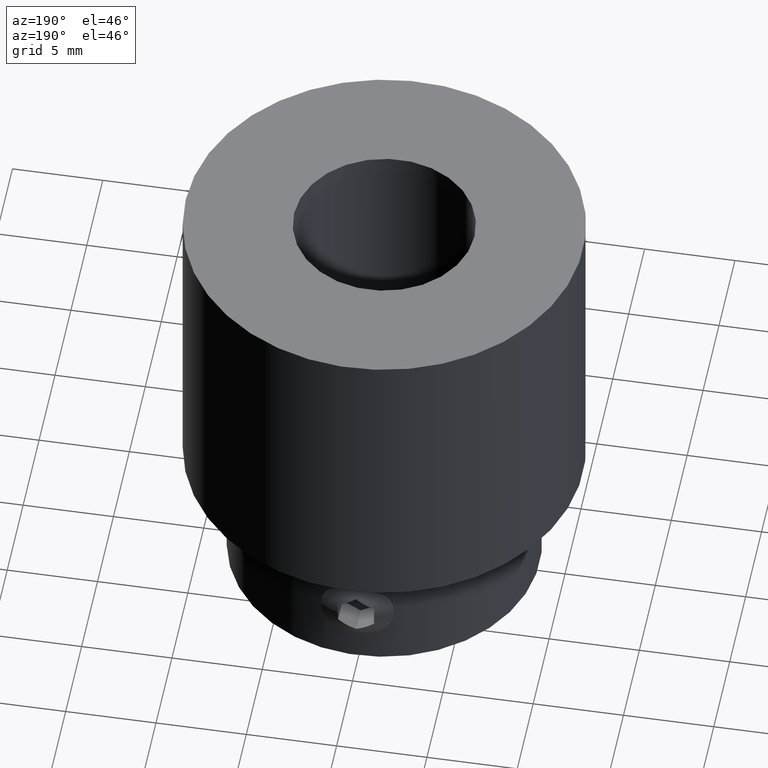
[diagram: clean part render]
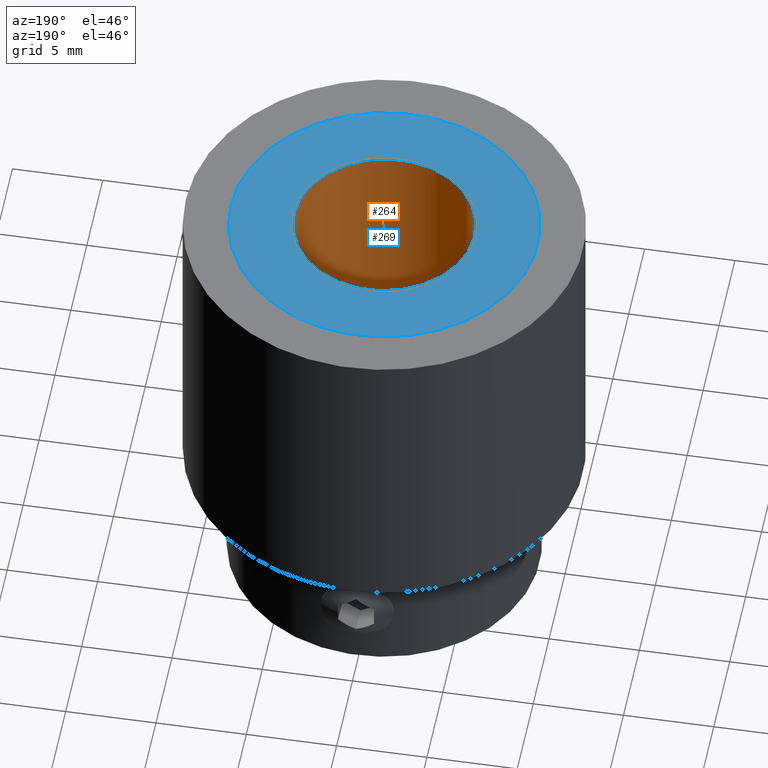
[diagram: same view with the hole feature highlighted: cylindrical wall and planar end face, labeled with their STEP entity ids]
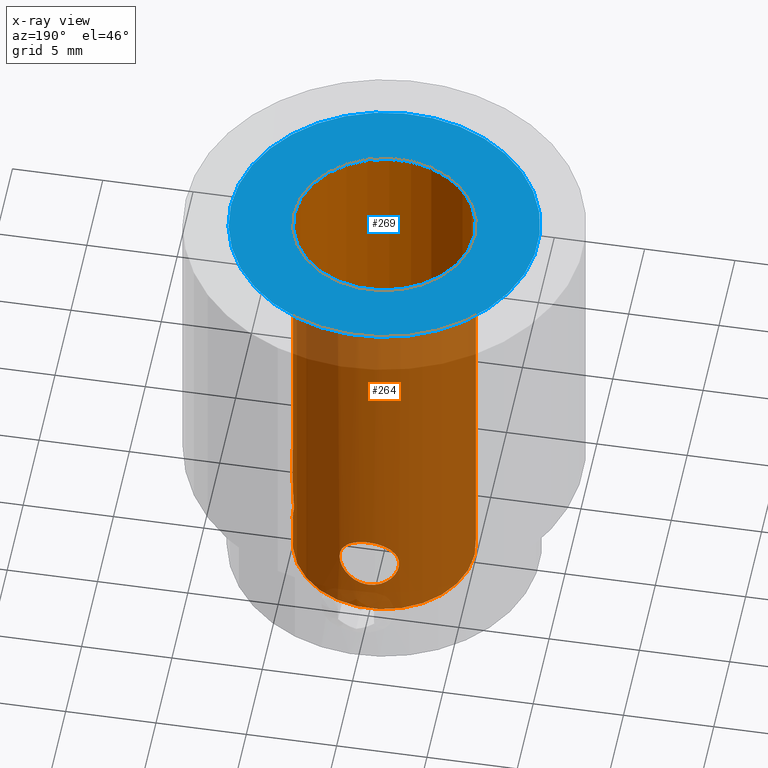
[diagram: x-ray of the same camera — body ghosted, the hole faces saturated]
A machine part, auxiliary view. The highlighted faces form one hole feature of diameter 10 mm: the cylindrical wall (entity #264, orange) and its adjacent planar end face (entity #269, blue) — they share a circular edge in the B-rep.
The next image is the same camera in x-ray (body ghosted, the hole faces saturated) — the bore reads through the body.
Wall:
#264 = ADVANCED_FACE( '', ( #309, #310, #311, #312 ), #313, .F. );
#309 = FACE_BOUND( '', #401, .T. );
#310 = FACE_OUTER_BOUND( '', #402, .T. );
#311 = FACE_OUTER_BOUND( '', #403, .T. );
#312 = FACE_BOUND( '', #404, .T. );
#313 = CYLINDRICAL_SURFACE( '', #405, 5.00000000000000 );
#401 = EDGE_LOOP( '', ( #495 ) );
#402 = EDGE_LOOP( '', ( #496 ) );
#403 = EDGE_LOOP( '', ( #497 ) );
#404 = EDGE_LOOP( '', ( #498 ) );
#405 = AXIS2_PLACEMENT_3D( '', #499, #500, #501 );
#495 = ORIENTED_EDGE( '', *, *, #708, .T. );
#496 = ORIENTED_EDGE( '', *, *, #709, .F. );
#497 = ORIENTED_EDGE( '', *, *, #710, .T. );
#498 = ORIENTED_EDGE( '', *, *, #711, .T. );
#499 = CARTESIAN_POINT( '', ( 0.000000000000000, 0.000000000000000, -25.0000000000000 ) );
#500 = DIRECTION( '', ( -0.000000000000000, 0.000000000000000, -1.00000000000000 ) );
#501 = DIRECTION( '', ( 1.00000000000000, 0.000000000000000, 0.000000000000000 ) );
#708 = EDGE_CURVE( '', #770, #770, #771, .T. );
#709 = EDGE_CURVE( '', #772, #772, #773, .T. );
#710 = EDGE_CURVE( '', #774, #774, #775, .T. );
#711 = EDGE_CURVE( '', #776, #776, #777, .T. );
#770 = VERTEX_POINT( '', #972 );
#771 = B_SPLINE_CURVE_WITH_KNOTS( '', 3, ( #973, #974, #975, #976, #977, #978, #979, #980, #981, #982, #983, #984, #985, #986, #987, #988, #989, #990, #991, #992, #993, #994, #995, #996, #997, #998, #999, #1000, #1001, #1002, #1003, #1004, #1005, #1006, #1007, #1008, #1009, #1010, #1011, #1012, #1013, #1014, #1015, #1016, #1017, #1018, #1019, #1020, #1021, #1022, #1023, #1024, #1025, #1026, #1027, #1028 ), .UNSPECIFIED., .T., .F., ( 2, 2, 2, 2, 2, 2, 2, 2, 2, 2, 2, 2, 2, 2, 2, 2, 2, 2, 2, 2, 2, 2, 2, 2, 2, 2, 2, 2, 2, 2 ), ( -0.000324666240844052, 0.000000000000000, 0.000324666240844052, 0.000649332481688104, 0.000973998722532155, 0.00129866496337621, 0.00194799744506430, 0.00227266368590835, 0.00259732992675240, 0.00292199616759645, 0.00324666240844050, 0.00389599489012859, 0.00422066113097265, 0.00454532737181670, 0.00486999361266075, 0.00519465985350480, 0.00584399233519290, 0.00616865857603696, 0.00649332481688101, 0.00714265729856913, 0.00746732353941318, 0.00779198978025724, 0.00811665602110130, 0.00844132226194536, 0.00909065474363346, 0.00941532098447751, 0.00973998722532157, 0.0100646534661656, 0.0103893197070097, 0.0107139859478537 ), .UNSPECIFIED. );
#772 = VERTEX_POINT( '', #1029 );
#773 = CIRCLE( '', #1030, 5.00000000000000 );
#774 = VERTEX_POINT( '', #1031 );
#775 = CIRCLE( '', #1032, 5.00000000000000 );
#776 = VERTEX_POINT( '', #1033 );
#777 = B_SPLINE_CURVE_WITH_KNOTS( '', 3, ( #1034, #1035, #1036, #1037, #1038, #1039, #1040, #1041, #1042, #1043, #1044, #1045, #1046, #1047, #1048, #1049, #1050, #1051, #1052, #1053, #1054, #1055, #1056, #1057, #1058, #1059, #1060, #1061, #1062, #1063, #1064, #1065, #1066, #1067, #1068, #1069, #1070, #1071, #1072, #1073, #1074, #1075, #1076, #1077, #1078, #1079, #1080, #1081, #1082, #1083, #1084, #1085, #1086, #1087, #1088, #1089 ), .UNSPECIFIED., .T., .F., ( 2, 2, 2, 2, 2, 2, 2, 2, 2, 2, 2, 2, 2, 2, 2, 2, 2, 2, 2, 2, 2, 2, 2, 2, 2, 2, 2, 2, 2, 2 ), ( -0.000324666240844045, 0.000000000000000, 0.000324666240844059, 0.000649332481688118, 0.000973998722532177, 0.00129866496337624, 0.00194799744506435, 0.00227266368590840, 0.00259732992675245, 0.00292199616759651, 0.00324666240844057, 0.00389599489012868, 0.00422066113097273, 0.00454532737181678, 0.00486999361266083, 0.00519465985350488, 0.00584399233519298, 0.00616865857603704, 0.00649332481688109, 0.00714265729856919, 0.00746732353941324, 0.00779198978025729, 0.00811665602110134, 0.00844132226194540, 0.00909065474363349, 0.00941532098447753, 0.00973998722532158, 0.0100646534661656, 0.0103893197070097, 0.0107139859478537 ), .UNSPECIFIED. );
#972 = CARTESIAN_POINT( '', ( 5.00000000000000, 0.000000000000000, -23.1500000000000 ) );
#973 = CARTESIAN_POINT( '', ( 5.00000000000000, -0.109835536220147, -23.1500000000000 ) );
#974 = CARTESIAN_POINT( '', ( 5.00000000000000, 0.109835536220146, -23.1500000000000 ) );
#975 = CARTESIAN_POINT( '', ( 4.99638763625927, 0.217688094822252, -23.1391435467906 ) );
#976 = CARTESIAN_POINT( '', ( 4.98263907752836, 0.429633962204031, -23.0967449176790 ) );
#977 = CARTESIAN_POINT( '', ( 4.97232767456793, 0.534855307893065, -23.0646427457235 ) );
#978 = CARTESIAN_POINT( '', ( 4.94680087144427, 0.734352668636629, -22.9815205972894 ) );
#979 = CARTESIAN_POINT( '', ( 4.93166204488017, 0.828842250047668, -22.9307678909097 ) );
#980 = CARTESIAN_POINT( '', ( 4.89826049237378, 1.00762798156163, -22.8110156688218 ) );
#981 = CARTESIAN_POINT( '', ( 4.87999899290080, 1.09162197388272, -22.7418814924573 ) );
#982 = CARTESIAN_POINT( '', ( 4.82562647798528, 1.31812135756645, -22.5152284409992 ) );
#983 = CARTESIAN_POINT( '', ( 4.78874071107988, 1.44064944240953, -22.3325336327190 ) );
#984 = CARTESIAN_POINT( '', ( 4.74914509275229, 1.56444814278200, -22.0352782219806 ) );
#985 = CARTESIAN_POINT( '', ( 4.73830359005845, 1.59655512217687, -21.9305170706854 ) );
#986 = CARTESIAN_POINT( '', ( 4.72370050753533, 1.63925674768184, -21.7171877562855 ) );
#987 = CARTESIAN_POINT( '', ( 4.71993113326332, 1.64992427208637, -21.6096184299241 ) );
#988 = CARTESIAN_POINT( '', ( 4.71987846502802, 1.65007493215697, -21.3926732928581 ) );
#989 = CARTESIAN_POINT( '', ( 4.72372784040480, 1.63917627600394, -21.2824736956757 ) );
#990 = CARTESIAN_POINT( '', ( 4.73825079285074, 1.59671005448043, -21.0701935798429 ) );
#991 = CARTESIAN_POINT( '', ( 4.74886821385391, 1.56530191977704, -20.9669476382338 ) );
#992 = CARTESIAN_POINT( '', ( 4.78891789519194, 1.44011910741734, -20.6658437567098 ) );
#993 = CARTESIAN_POINT( '', ( 4.82553797434980, 1.31855584187963, -20.4850818024291 ) );
#994 = CARTESIAN_POINT( '', ( 4.88021561330725, 1.09068654073655, -20.2572450024904 ) );
#995 = CARTESIAN_POINT( '', ( 4.89813662733830, 1.00820396732400, -20.1894517645132 ) );
#996 = CARTESIAN_POINT( '', ( 4.93146357862007, 0.829990742445133, -20.0699205320260 ) );
#997 = CARTESIAN_POINT( '', ( 4.94692765916273, 0.733441808669380, -20.0180613976251 ) );
#998 = CARTESIAN_POINT( '', ( 4.97232986094084, 0.534757800961845, -19.9353553111892 ) );
#999 = CARTESIAN_POINT( '', ( 4.98246930232007, 0.431795178860568, -19.9037819197278 ) );
#1000 = CARTESIAN_POINT( '', ( 4.99637957981227, 0.218262501323626, -19.8608780653072 ) );
#1001 = CARTESIAN_POINT( '', ( 4.99998552098559, 0.108867850517932, -19.8500438758044 ) );
#1002 = CARTESIAN_POINT( '', ( 5.00002882455227, -0.215734627295231, -19.8499126528655 ) );
#1003 = CARTESIAN_POINT( '', ( 4.98515344017730, -0.434216836233567, -19.8936189530289 ) );
#1004 = CARTESIAN_POINT( '', ( 4.94701086894016, -0.732910794935546, -20.0177827929412 ) );
#1005 = CARTESIAN_POINT( '', ( 4.93155325174305, -0.829459497867047, -20.0696127988800 ) );
#1006 = CARTESIAN_POINT( '', ( 4.89823911244812, -1.00770736360446, -20.1890703782936 ) );
#1007 = CARTESIAN_POINT( '', ( 4.88029505191802, -1.09034869156518, -20.2569200339885 ) );
#1008 = CARTESIAN_POINT( '', ( 4.82544979572954, -1.31893689037322, -20.4854371564065 ) );
#1009 = CARTESIAN_POINT( '', ( 4.78900740359890, -1.43982313873575, -20.6653712573325 ) );
#1010 = CARTESIAN_POINT( '', ( 4.74895189866937, -1.56504840492742, -20.9662187316273 ) );
#1011 = CARTESIAN_POINT( '', ( 4.73833847797232, -1.59645019954891, -21.0692945258691 ) );
#1012 = CARTESIAN_POINT( '', ( 4.72380037409615, -1.63896760101044, -21.2810350532068 ) );
#1013 = CARTESIAN_POINT( '', ( 4.71990866955540, -1.64998853062776, -21.3910818909815 ) );
#1014 = CARTESIAN_POINT( '', ( 4.71990065695902, -1.65001145104670, -21.6085703324583 ) );
#1015 = CARTESIAN_POINT( '', ( 4.72365834343302, -1.63937700238736, -21.7162324063120 ) );
#1016 = CARTESIAN_POINT( '', ( 4.73820482184360, -1.59684694560844, -21.9294103419773 ) );
#1017 = CARTESIAN_POINT( '', ( 4.74904714852633, -1.56474738962517, -22.0344566501377 ) );
#1018 = CARTESIAN_POINT( '', ( 4.78871320555187, -1.44074934809374, -22.3324989686650 ) );
#1019 = CARTESIAN_POINT( '', ( 4.82558907262399, -1.31828279837326, -22.5150775348400 ) );
#1020 = CARTESIAN_POINT( '', ( 4.88003247062558, -1.09147970398846, -22.7420185346190 ) );
#1021 = CARTESIAN_POINT( '', ( 4.89833906802602, -1.00722776289552, -22.8113028317393 ) );
#1022 = CARTESIAN_POINT( '', ( 4.93165924772445, -0.828836809047127, -22.9307523988600 ) );
#1023 = CARTESIAN_POINT( '', ( 4.94678192412641, -0.734476668026771, -22.9814573470969 ) );
#1024 = CARTESIAN_POINT( '', ( 4.97230806618776, -0.535032593085343, -23.0645804458319 ) );
#1025 = CARTESIAN_POINT( '', ( 4.98262901639659, -0.429757028653538, -23.0967136619300 ) );
#1026 = CARTESIAN_POINT( '', ( 4.99638506420792, -0.217759750354424, -23.1391358433627 ) );
#1027 = CARTESIAN_POINT( '', ( 5.00000000000000, -0.109835536220147, -23.1500000000000 ) );
#1028 = CARTESIAN_POINT( '', ( 5.00000000000000, 0.109835536220146, -23.1500000000000 ) );
#1029 = CARTESIAN_POINT( '', ( 5.00000000000000, 0.000000000000000, -25.0000000000000 ) );
#1030 = AXIS2_PLACEMENT_3D( '', #1264, #1265, #1266 );
#1031 = CARTESIAN_POINT( '', ( 5.00000000000000, 0.000000000000000, 0.000000000000000 ) );
#1032 = AXIS2_PLACEMENT_3D( '', #1267, #1268, #1269 );
#1033 = CARTESIAN_POINT( '', ( 3.06161699786838E-016, 5.00000000000000, -23.1500000000000 ) );
#1034 = CARTESIAN_POINT( '', ( 0.109835536220142, 5.00000000000000, -23.1500000000000 ) );
#1035 = CARTESIAN_POINT( '', ( -0.109835536220146, 5.00000000000000, -23.1500000000000 ) );
#1036 = CARTESIAN_POINT( '', ( -0.217688094822252, 4.99638763625927, -23.1391435467906 ) );
#1037 = CARTESIAN_POINT( '', ( -0.429633962204031, 4.98263907752837, -23.0967449176790 ) );
#1038 = CARTESIAN_POINT( '', ( -0.534855307893065, 4.97232767456793, -23.0646427457235 ) );
#1039 = CARTESIAN_POINT( '', ( -0.734352668636629, 4.94680087144427, -22.9815205972894 ) );
#1040 = CARTESIAN_POINT( '', ( -0.828842250047668, 4.93166204488017, -22.9307678909097 ) );
#1041 = CARTESIAN_POINT( '', ( -1.00762798156163, 4.89826049237378, -22.8110156688218 ) );
#1042 = CARTESIAN_POINT( '', ( -1.09162197388272, 4.87999899290080, -22.7418814924573 ) );
#1043 = CARTESIAN_POINT( '', ( -1.31812135756645, 4.82562647798529, -22.5152284409992 ) );
#1044 = CARTESIAN_POINT( '', ( -1.44064944240953, 4.78874071107988, -22.3325336327190 ) );
#1045 = CARTESIAN_POINT( '', ( -1.56444814278200, 4.74914509275229, -22.0352782219806 ) );
#1046 = CARTESIAN_POINT( '', ( -1.59655512217687, 4.73830359005845, -21.9305170706854 ) );
#1047 = CARTESIAN_POINT( '', ( -1.63925674768184, 4.72370050753533, -21.7171877562855 ) );
#1048 = CARTESIAN_POINT( '', ( -1.64992427208637, 4.71993113326332, -21.6096184299241 ) );
#1049 = CARTESIAN_POINT( '', ( -1.65007493215697, 4.71987846502802, -21.3926732928581 ) );
#1050 = CARTESIAN_POINT( '', ( -1.63917627600394, 4.72372784040480, -21.2824736956757 ) );
#1051 = CARTESIAN_POINT( '', ( -1.59671005448043, 4.73825079285074, -21.0701935798429 ) );
#1052 = CARTESIAN_POINT( '', ( -1.56530191977704, 4.74886821385391, -20.9669476382339 ) );
#1053 = CARTESIAN_POINT( '', ( -1.44011910741734, 4.78891789519195, -20.6658437567098 ) );
#1054 = CARTESIAN_POINT( '', ( -1.31855584187964, 4.82553797434980, -20.4850818024291 ) );
#1055 = CARTESIAN_POINT( '', ( -1.09068654073655, 4.88021561330725, -20.2572450024904 ) );
#1056 = CARTESIAN_POINT( '', ( -1.00820396732400, 4.89813662733830, -20.1894517645132 ) );
#1057 = CARTESIAN_POINT( '', ( -0.829990742445133, 4.93146357862007, -20.0699205320260 ) );
#1058 = CARTESIAN_POINT( '', ( -0.733441808669379, 4.94692765916273, -20.0180613976250 ) );
#1059 = CARTESIAN_POINT( '', ( -0.534757800961844, 4.97232986094084, -19.9353553111892 ) );
#1060 = CARTESIAN_POINT( '', ( -0.431795178860568, 4.98246930232007, -19.9037819197278 ) );
#1061 = CARTESIAN_POINT( '', ( -0.218262501323627, 4.99637957981227, -19.8608780653072 ) );
#1062 = CARTESIAN_POINT( '', ( -0.108867850517932, 4.99998552098559, -19.8500438758044 ) );
#1063 = CARTESIAN_POINT( '', ( 0.215734627295231, 5.00002882455228, -19.8499126528655 ) );
#1064 = CARTESIAN_POINT( '', ( 0.434216836233567, 4.98515344017731, -19.8936189530290 ) );
#1065 = CARTESIAN_POINT( '', ( 0.732910794935546, 4.94701086894015, -20.0177827929412 ) );
#1066 = CARTESIAN_POINT( '', ( 0.829459497867047, 4.93155325174304, -20.0696127988800 ) );
#1067 = CARTESIAN_POINT( '', ( 1.00770736360446, 4.89823911244812, -20.1890703782936 ) );
#1068 = CARTESIAN_POINT( '', ( 1.09034869156518, 4.88029505191802, -20.2569200339885 ) );
#1069 = CARTESIAN_POINT( '', ( 1.31893689037321, 4.82544979572954, -20.4854371564065 ) );
#1070 = CARTESIAN_POINT( '', ( 1.43982313873576, 4.78900740359891, -20.6653712573326 ) );
#1071 = CARTESIAN_POINT( '', ( 1.56504840492742, 4.74895189866938, -20.9662187316273 ) );
#1072 = CARTESIAN_POINT( '', ( 1.59645019954891, 4.73833847797233, -21.0692945258691 ) );
#1073 = CARTESIAN_POINT( '', ( 1.63896760101044, 4.72380037409615, -21.2810350532068 ) );
#1074 = CARTESIAN_POINT( '', ( 1.64998853062776, 4.71990866955540, -21.3910818909815 ) );
#1075 = CARTESIAN_POINT( '', ( 1.65001145104670, 4.71990065695902, -21.6085703324583 ) );
#1076 = CARTESIAN_POINT( '', ( 1.63937700238736, 4.72365834343302, -21.7162324063120 ) );
#1077 = CARTESIAN_POINT( '', ( 1.59684694560844, 4.73820482184360, -21.9294103419773 ) );
#1078 = CARTESIAN_POINT( '', ( 1.56474738962517, 4.74904714852633, -22.0344566501377 ) );
#1079 = CARTESIAN_POINT( '', ( 1.44074934809374, 4.78871320555187, -22.3324989686650 ) );
#1080 = CARTESIAN_POINT( '', ( 1.31828279837326, 4.82558907262399, -22.5150775348400 ) );
#1081 = CARTESIAN_POINT( '', ( 1.09147970398846, 4.88003247062558, -22.7420185346190 ) );
#1082 = CARTESIAN_POINT( '', ( 1.00722776289552, 4.89833906802602, -22.8113028317393 ) );
#1083 = CARTESIAN_POINT( '', ( 0.828836809047128, 4.93165924772445, -22.9307523988600 ) );
#1084 = CARTESIAN_POINT( '', ( 0.734476668026771, 4.94678192412641, -22.9814573470969 ) );
#1085 = CARTESIAN_POINT( '', ( 0.535032593085344, 4.97230806618775, -23.0645804458319 ) );
#1086 = CARTESIAN_POINT( '', ( 0.429757028653540, 4.98262901639659, -23.0967136619300 ) );
#1087 = CARTESIAN_POINT( '', ( 0.217759750354425, 4.99638506420792, -23.1391358433627 ) );
#1088 = CARTESIAN_POINT( '', ( 0.109835536220142, 5.00000000000000, -23.1500000000000 ) );
#1089 = CARTESIAN_POINT( '', ( -0.109835536220146, 5.00000000000000, -23.1500000000000 ) );
#1264 = CARTESIAN_POINT( '', ( 0.000000000000000, 0.000000000000000, -25.0000000000000 ) );
#1265 = DIRECTION( '', ( 0.000000000000000, 0.000000000000000, 1.00000000000000 ) );
#1266 = DIRECTION( '', ( 1.00000000000000, 0.000000000000000, 0.000000000000000 ) );
#1267 = CARTESIAN_POINT( '', ( 0.000000000000000, 0.000000000000000, 0.000000000000000 ) );
#1268 = DIRECTION( '', ( 0.000000000000000, 0.000000000000000, 1.00000000000000 ) );
#1269 = DIRECTION( '', ( 1.00000000000000, 0.000000000000000, 0.000000000000000 ) );
End face:
#269 = ADVANCED_FACE( '', ( #326, #327 ), #328, .T. );
#326 = FACE_BOUND( '', #418, .T. );
#327 = FACE_OUTER_BOUND( '', #419, .T. );
#328 = PLANE( '', #420 );
#418 = EDGE_LOOP( '', ( #522 ) );
#419 = EDGE_LOOP( '', ( #523 ) );
#420 = AXIS2_PLACEMENT_3D( '', #524, #525, #526 );
#522 = ORIENTED_EDGE( '', *, *, #710, .F. );
#523 = ORIENTED_EDGE( '', *, *, #713, .T. );
#524 = CARTESIAN_POINT( '', ( 0.000000000000000, 0.000000000000000, 0.000000000000000 ) );
#525 = DIRECTION( '', ( 0.000000000000000, 0.000000000000000, 1.00000000000000 ) );
#526 = DIRECTION( '', ( 1.00000000000000, 0.000000000000000, 0.000000000000000 ) );
#710 = EDGE_CURVE( '', #774, #774, #775, .T. );
#713 = EDGE_CURVE( '', #780, #780, #781, .T. );
#774 = VERTEX_POINT( '', #1031 );
#775 = CIRCLE( '', #1032, 5.00000000000000 );
#780 = VERTEX_POINT( '', #1092 );
#781 = CIRCLE( '', #1093, 8.50000000000000 );
#1031 = CARTESIAN_POINT( '', ( 5.00000000000000, 0.000000000000000, 0.000000000000000 ) );
#1032 = AXIS2_PLACEMENT_3D( '', #1267, #1268, #1269 );
#1092 = CARTESIAN_POINT( '', ( 8.50000000000000, 0.000000000000000, 0.000000000000000 ) );
#1093 = AXIS2_PLACEMENT_3D( '', #1273, #1274, #1275 );
#1267 = CARTESIAN_POINT( '', ( 0.000000000000000, 0.000000000000000, 0.000000000000000 ) );
#1268 = DIRECTION( '', ( 0.000000000000000, 0.000000000000000, 1.00000000000000 ) );
#1269 = DIRECTION( '', ( 1.00000000000000, 0.000000000000000, 0.000000000000000 ) );
#1273 = CARTESIAN_POINT( '', ( 0.000000000000000, 0.000000000000000, 0.000000000000000 ) );
#1274 = DIRECTION( '', ( 0.000000000000000, 0.000000000000000, 1.00000000000000 ) );
#1275 = DIRECTION( '', ( 1.00000000000000, 0.000000000000000, 0.000000000000000 ) );